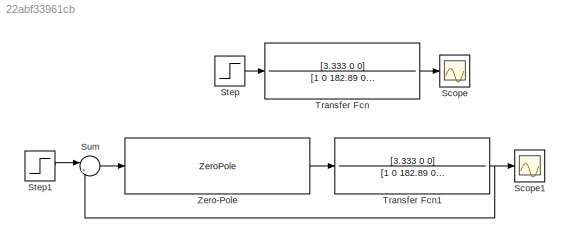
MODEL slx_22abf33961cb
KIND model
CONFIG AbsTol = auto
CONFIG EnableMultiTasking = off
CONFIG FixedStep = auto
CONFIG MaxStep = auto
CONFIG MinStep = auto
CONFIG RelTol = 1e-3
CONFIG SampleTimeConstraint = Unconstrained
CONFIG SolverName = VariableStepAuto
CONFIG StartTime = 0.0
CONFIG StopTime = 2
BLOCK [Scope] Scope
  Floating = off
  NumInputPorts = 1
  ScopeSpecificationString = Simulink.scopes.TimeScopeBlockCfg('CurrentConfiguration', extmgr.ConfigurationSet(extmgr.Configuration('Core','General UI',true),extmgr.Configuration('Core','Source UI',true),extmgr.Configuration('Sources','WiredSimulink',true),extmgr.Configuration('Visuals','Time Domain',true,'SerializedDisplays',{struct('MinYLimReal','-0.04825','MaxYLimReal','0.04446','YLabelReal','','MinYLimMag','0.00000','MaxY...<+1421ch>
BLOCK [Scope] Scope1
  Floating = off
  NumInputPorts = 1
  ScopeSpecificationString = Simulink.scopes.TimeScopeBlockCfg('CurrentConfiguration', extmgr.ConfigurationSet(extmgr.Configuration('Core','General UI',true),extmgr.Configuration('Core','Source UI',true),extmgr.Configuration('Sources','WiredSimulink',true,'DataLoggingVariableName','ScopeData1'),extmgr.Configuration('Visuals','Time Domain',true,'SerializedDisplays',{struct('MinYLimReal','-1035.9904','MaxYLimReal','1876.6991','...<+1477ch>
BLOCK [Step] Step
  SampleTime = 0
BLOCK [Step] Step1
  SampleTime = 0
BLOCK [Sum] Sum
  Inputs = |+-
BLOCK [TransferFcn] Transfer Fcn
  Denominator = [1 0 182.89 0 2616]
  Numerator = [3.333 0 0]
BLOCK [TransferFcn] Transfer Fcn1
  Denominator = [1 0 182.89 0 2616]
  Numerator = [3.333 0 0]
BLOCK [ZeroPole] Zero-Pole
  Gain = [3331.81]
  Poles = [0 -7.704 -7.704]
  Zeros = [-4.231 -4.231]
LINE Step1:1 -> Sum:1
LINE Step:1 -> Transfer Fcn:1
LINE Sum:1 -> Zero-Pole:1
NET Transfer Fcn1:1 -> Scope1:1, Sum:2
LINE Transfer Fcn:1 -> Scope:1
LINE Zero-Pole:1 -> Transfer Fcn1:1
note: NET lines group one-source signal fan-out (src -> all destinations, sorted); 1:1 wires keep LINE
